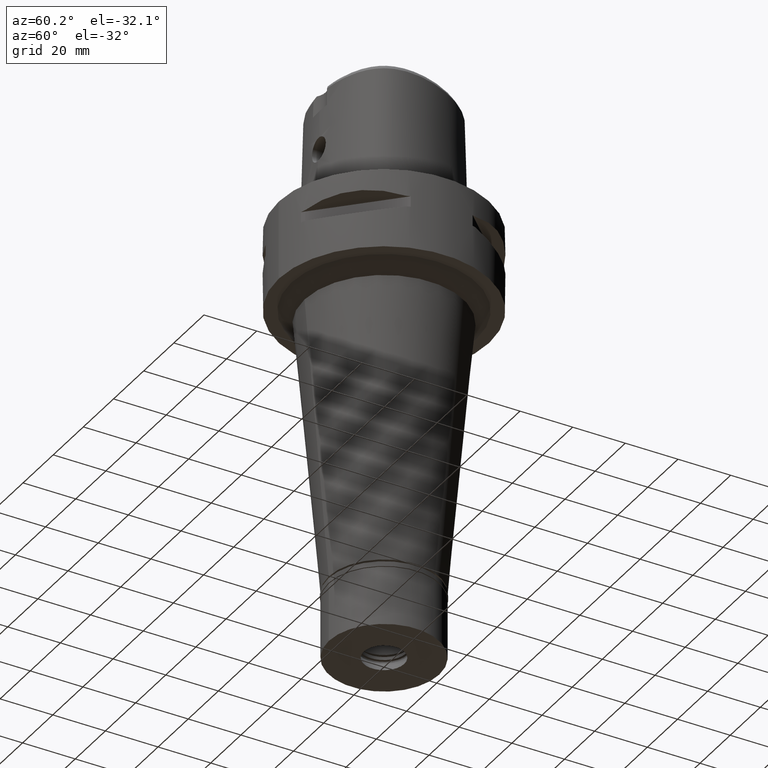
[diagram: clean part render]
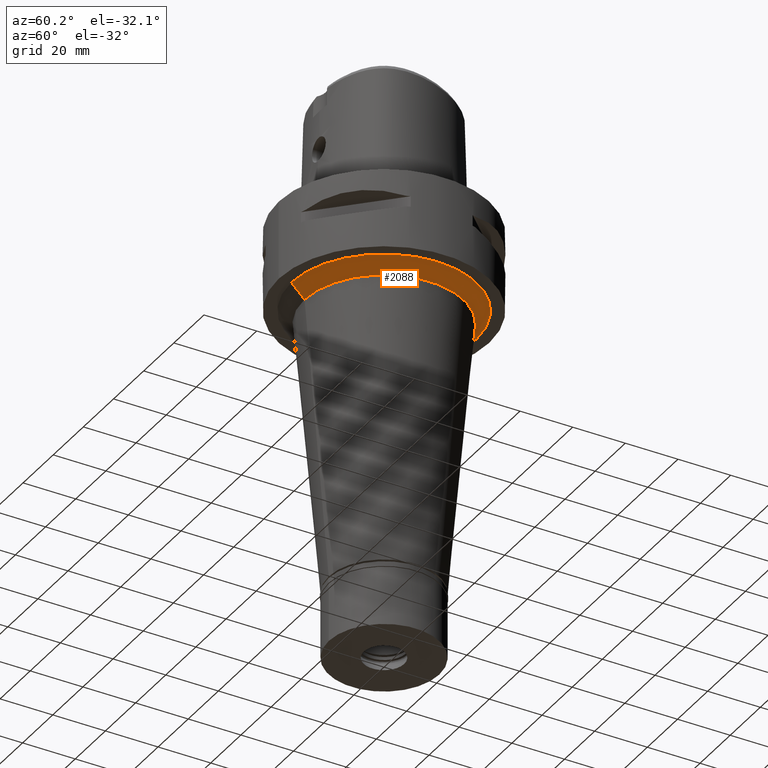
[diagram: same view with one face highlighted and labeled with its STEP entity id]
A machine part, auxiliary view. The second image highlights one B-rep face of the part: STEP entity #2088.
In plain terms, the highlighted conical surface has half-angle 45 deg.
Its self-contained STEP definition (entity closure, byte-faithful):
#112 = EDGE_CURVE ( 'NONE', #1891, #3724, #3418, .T. ) ;
#147 = EDGE_CURVE ( 'NONE', #2191, #3724, #4473, .T. ) ;
#360 = FACE_OUTER_BOUND ( 'NONE', #2249, .T. ) ;
#482 = DIRECTION ( 'NONE',  ( 0.0000000000000000000, 0.0000000000000000000, -1.000000000000000000 ) ) ;
#582 = AXIS2_PLACEMENT_3D ( 'NONE', #3393, #4210, #2632 ) ;
#692 = ORIENTED_EDGE ( 'NONE', *, *, #147, .T. ) ;
#747 = VERTEX_POINT ( 'NONE', #2282 ) ;
#1035 = ORIENTED_EDGE ( 'NONE', *, *, #112, .F. ) ;
#1184 = CARTESIAN_POINT ( 'NONE',  ( 0.0000000000000000000, -35.17756080387000139, -30.00000000000000000 ) ) ;
#1187 = EDGE_CURVE ( 'NONE', #1891, #747, #2469, .T. ) ;
#1260 = ORIENTED_EDGE ( 'NONE', *, *, #2099, .T. ) ;
#1707 = VECTOR ( 'NONE', #4037, 1000.000000000000114 ) ;
#1779 = CARTESIAN_POINT ( 'NONE',  ( 0.0000000000000000000, 0.0000000000000000000, -30.00000000000000000 ) ) ;
#1891 = VERTEX_POINT ( 'NONE', #1988 ) ;
#1988 = CARTESIAN_POINT ( 'NONE',  ( 0.0000000000000000000, 35.17756080387000139, -30.00000000000000000 ) ) ;
#2088 = ADVANCED_FACE ( 'NONE', ( #360 ), #4153, .T. ) ;
#2099 = EDGE_CURVE ( 'NONE', #747, #2191, #2351, .T. ) ;
#2107 = DIRECTION ( 'NONE',  ( 0.0000000000000000000, 1.000000000000000000, 0.0000000000000000000 ) ) ;
#2191 = VERTEX_POINT ( 'NONE', #3242 ) ;
#2249 = EDGE_LOOP ( 'NONE', ( #5091, #1260, #692, #1035 ) ) ;
#2250 = DIRECTION ( 'NONE',  ( 0.0000000000000000000, -0.7071067811866975639, -0.7071067811863974706 ) ) ;
#2282 = CARTESIAN_POINT ( 'NONE',  ( 0.0000000000000000000, -35.17756080387000139, -30.00000000000000000 ) ) ;
#2301 = AXIS2_PLACEMENT_3D ( 'NONE', #1779, #482, #2107 ) ;
#2351 = LINE ( 'NONE', #1184, #1707 ) ;
#2393 = AXIS2_PLACEMENT_3D ( 'NONE', #4822, #4399, #4429 ) ;
#2469 = CIRCLE ( 'NONE', #2301, 35.17756080387000139 ) ;
#2632 = DIRECTION ( 'NONE',  ( 0.0000000000000000000, -1.000000000000000000, 0.0000000000000000000 ) ) ;
#2846 = CARTESIAN_POINT ( 'NONE',  ( 0.0000000000000000000, 30.17756080387000139, -35.00000000000000000 ) ) ;
#3242 = CARTESIAN_POINT ( 'NONE',  ( 0.0000000000000000000, -30.17756080387000139, -35.00000000000000000 ) ) ;
#3393 = CARTESIAN_POINT ( 'NONE',  ( 0.0000000000000000000, 0.0000000000000000000, -35.00000000000000000 ) ) ;
#3418 = LINE ( 'NONE', #4283, #4297 ) ;
#3724 = VERTEX_POINT ( 'NONE', #2846 ) ;
#4037 = DIRECTION ( 'NONE',  ( 0.0000000000000000000, 0.7071067811866975639, -0.7071067811863974706 ) ) ;
#4153 = CONICAL_SURFACE ( 'NONE', #2393, 32.67756080387000139, 0.7853981633972997312 ) ;
#4210 = DIRECTION ( 'NONE',  ( 0.0000000000000000000, 0.0000000000000000000, 1.000000000000000000 ) ) ;
#4283 = CARTESIAN_POINT ( 'NONE',  ( 0.0000000000000000000, 35.17756080387000139, -30.00000000000000000 ) ) ;
#4297 = VECTOR ( 'NONE', #2250, 1000.000000000000114 ) ;
#4399 = DIRECTION ( 'NONE',  ( 0.0000000000000000000, 0.0000000000000000000, 1.000000000000000000 ) ) ;
#4429 = DIRECTION ( 'NONE',  ( 0.0000000000000000000, 1.000000000000000000, 0.0000000000000000000 ) ) ;
#4473 = CIRCLE ( 'NONE', #582, 30.17756080385999695 ) ;
#4822 = CARTESIAN_POINT ( 'NONE',  ( 0.0000000000000000000, 0.0000000000000000000, -32.50000000000000000 ) ) ;
#5091 = ORIENTED_EDGE ( 'NONE', *, *, #1187, .T. ) ;